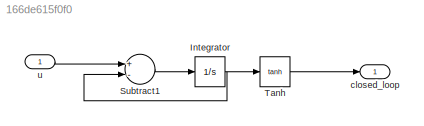
MODEL slx_166de615f0f0
KIND model
CONFIG AbsTol = auto
CONFIG EnableMultiTasking = off
CONFIG FixedStep = auto
CONFIG MaxStep = auto
CONFIG MinStep = auto
CONFIG RelTol = 1e-3
CONFIG SampleTimeConstraint = Unconstrained
CONFIG Solver = VariableStepAuto
CONFIG SolverName = VariableStepAuto
CONFIG StartTime = 0.0
CONFIG StopTime = 10.0
BLOCK [Integrator] Integrator
  Ports = [1, 1]
BLOCK [Sum] Subtract1
  InputSameDT = off
  Inputs = +-
  OutDataTypeStr = Inherit: Inherit via internal rule
  Ports = [2, 1]
  SaturateOnIntegerOverflow = off
BLOCK [Trigonometry] Tanh
  Operator = tanh
  Ports = [1, 1]
BLOCK [Outport] closed_loop
  IconDisplay = Port number
BLOCK [Inport] u
  IconDisplay = Port number
NET Integrator:1 -> Subtract1:2, Tanh:1
LINE Subtract1:1 -> Integrator:1
LINE Tanh:1 -> closed_loop:1
LINE u:1 -> Subtract1:1
note: NET lines group one-source signal fan-out (src -> all destinations, sorted); 1:1 wires keep LINE
